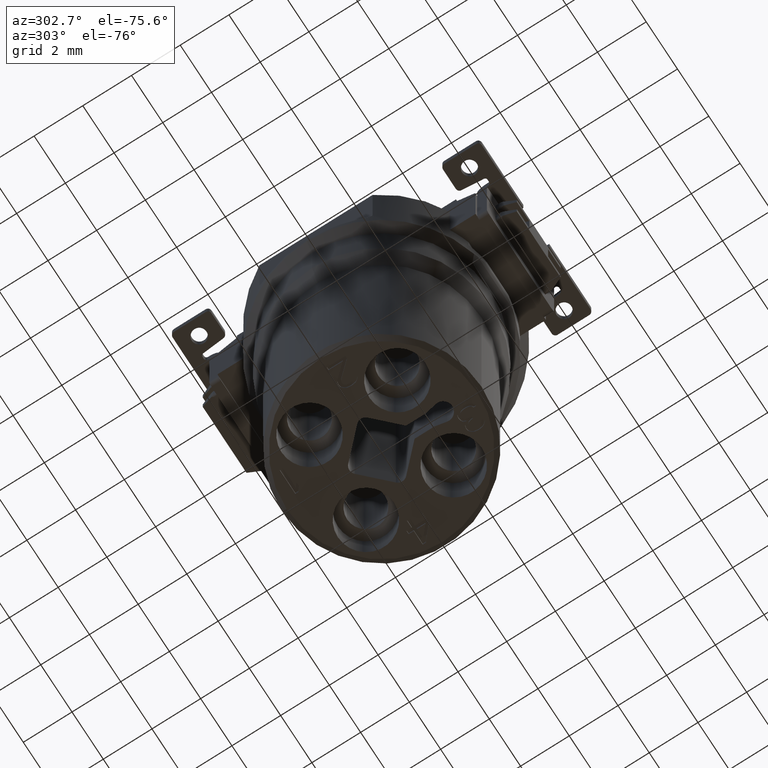
[diagram: clean part render]
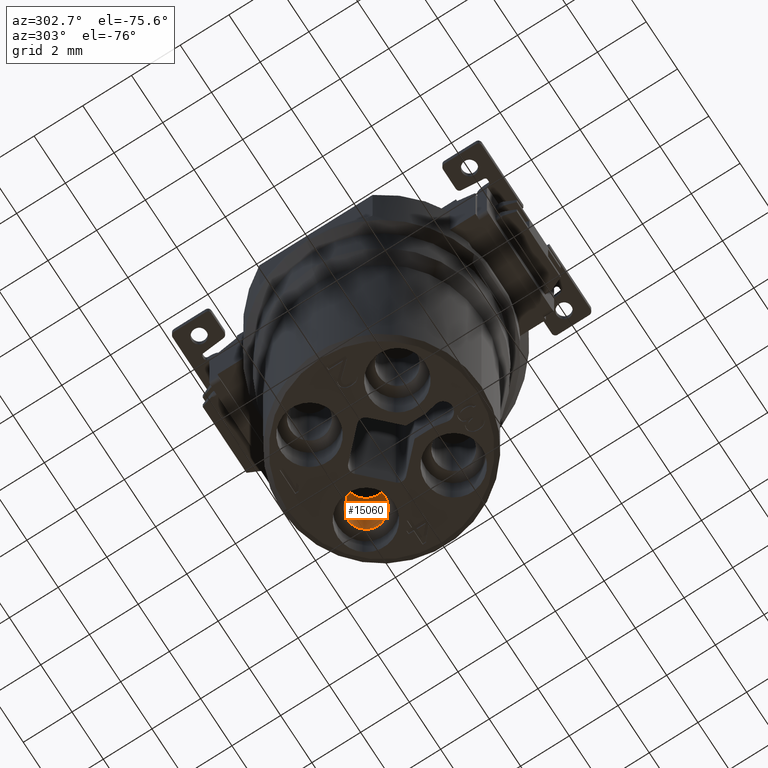
[diagram: same view with one face highlighted and labeled with its STEP entity id]
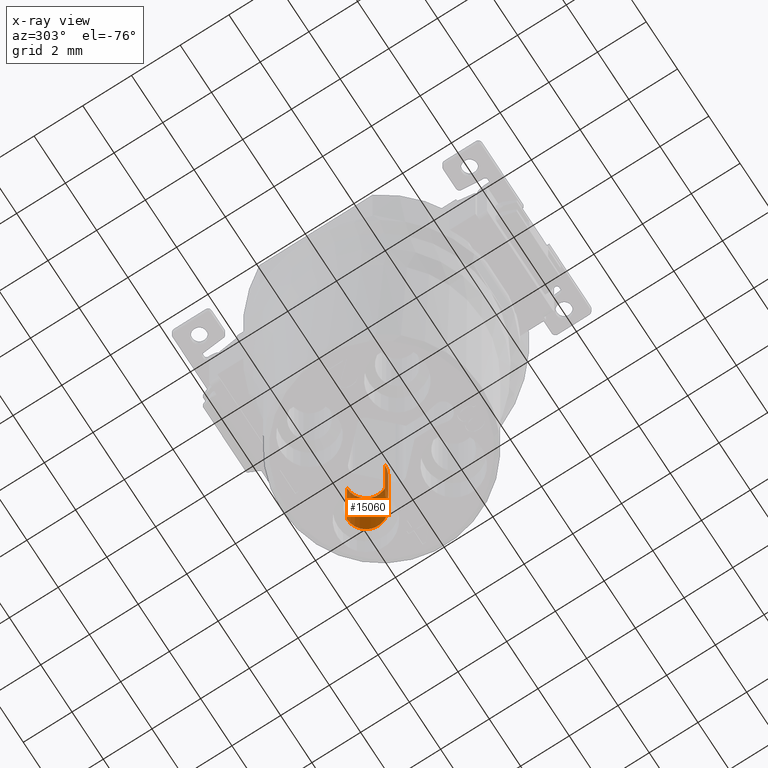
[diagram: x-ray of the same camera — body ghosted, the highlighted face saturated]
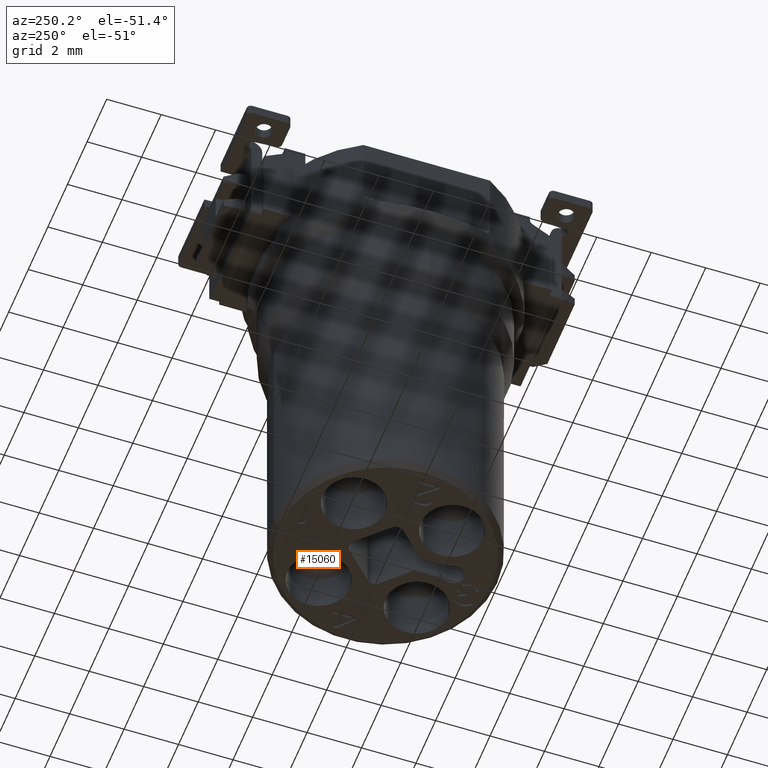
[diagram: same view with one face highlighted and labeled with its STEP entity id]
A machine part, auxiliary view. The second image highlights one B-rep face of the part: STEP entity #15060.
The next image is the same camera in x-ray: the body ghosted, the highlighted face saturated — about 8% of this face is hidden behind the body in this view.
A second angle (auxiliary view) of the same face is appended — the face is thin or edge-on in the first view.
In plain terms, the highlighted cylindrical surface (edge-blend (fillet) strip) has radius 0.775 mm, axis along (0, 0, -1).
Its self-contained STEP definition (entity closure, byte-faithful):
#5346=DIRECTION('',(1.562601244678E-10,-1.722886740295E-10,1.E0));
#5347=VECTOR('',#5346,4.283493648628E0);
#5348=CARTESIAN_POINT('',(1.803122291356E0,1.028122292764E0,-1.628349364863E1));
#5349=LINE('',#5348,#5347);
#5350=DIRECTION('',(1.562602281424E-10,-1.722888295413E-10,-1.E0));
#5351=VECTOR('',#5350,4.283493648628E0);
#5352=CARTESIAN_POINT('',(1.803122292026E0,2.578122292026E0,-1.2E1));
#5353=LINE('',#5352,#5351);
#5359=CARTESIAN_POINT('',(1.803122292026E0,1.803122292026E0,-1.628349364905E1));
#5360=DIRECTION('',(0.E0,0.E0,-1.E0));
#5361=DIRECTION('',(0.E0,1.E0,0.E0));
#5362=AXIS2_PLACEMENT_3D('',#5359,#5360,#5361);
#5364=CARTESIAN_POINT('',(1.803122292026E0,1.803122292026E0,-1.2E1));
#5365=DIRECTION('',(0.E0,0.E0,-1.E0));
#5366=DIRECTION('',(0.E0,1.E0,0.E0));
#5367=AXIS2_PLACEMENT_3D('',#5364,#5365,#5366);
#6884=CARTESIAN_POINT('',(1.803122292026E0,1.028122292026E0,-1.628349364905E1));
#6885=CARTESIAN_POINT('',(1.803122292026E0,2.578122292026E0,-1.628349364905E1));
#6886=VERTEX_POINT('',#6884);
#6887=VERTEX_POINT('',#6885);
#7531=CARTESIAN_POINT('',(1.803122292026E0,2.578122292026E0,-1.2E1));
#7532=CARTESIAN_POINT('',(1.803122292026E0,1.028122292026E0,-1.2E1));
#7533=VERTEX_POINT('',#7531);
#7534=VERTEX_POINT('',#7532);
#15047=CARTESIAN_POINT('',(1.803122292026E0,1.803122292026E0,-1.8E1));
#15048=DIRECTION('',(0.E0,0.E0,-1.E0));
#15049=DIRECTION('',(0.E0,-1.E0,0.E0));
#15050=AXIS2_PLACEMENT_3D('',#15047,#15048,#15049);
#15051=CYLINDRICAL_SURFACE('',#15050,7.75E-1);
#15052=ORIENTED_EDGE('',*,*,#15041,.F.);
#15054=ORIENTED_EDGE('',*,*,#15053,.T.);
#15055=ORIENTED_EDGE('',*,*,#15037,.F.);
#15057=ORIENTED_EDGE('',*,*,#15056,.F.);
#15058=EDGE_LOOP('',(#15052,#15054,#15055,#15057));
#15059=FACE_OUTER_BOUND('',#15058,.F.);
#5363=CIRCLE('',#5362,7.75E-1);
#5368=CIRCLE('',#5367,7.75E-1);
#15037=EDGE_CURVE('',#6886,#7534,#5349,.T.);
#15041=EDGE_CURVE('',#7533,#6887,#5353,.T.);
#15053=EDGE_CURVE('',#7533,#7534,#5368,.T.);
#15056=EDGE_CURVE('',#6887,#6886,#5363,.T.);
#15060=ADVANCED_FACE('',(#15059),#15051,.F.);